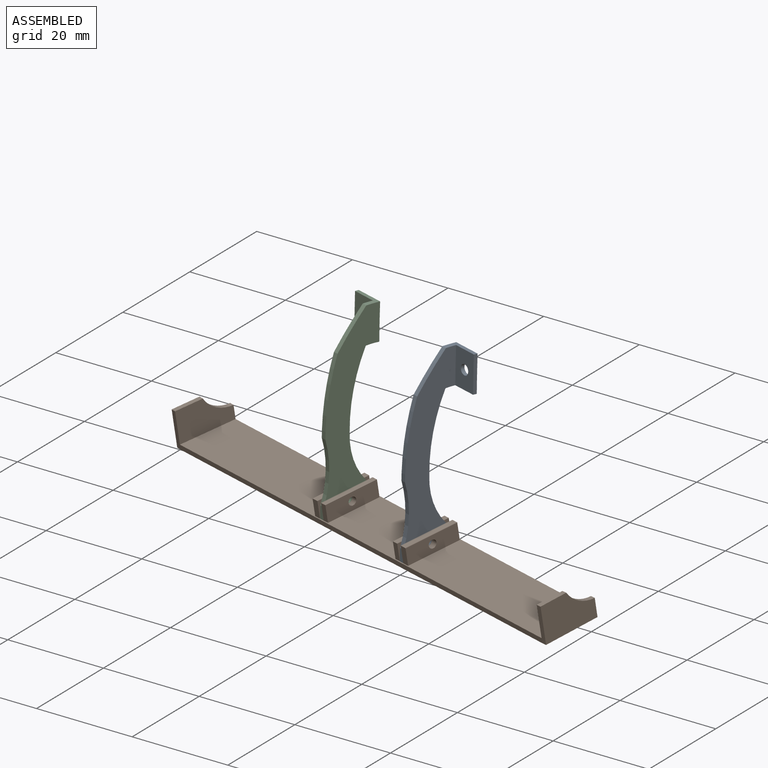
[diagram: assembled view]
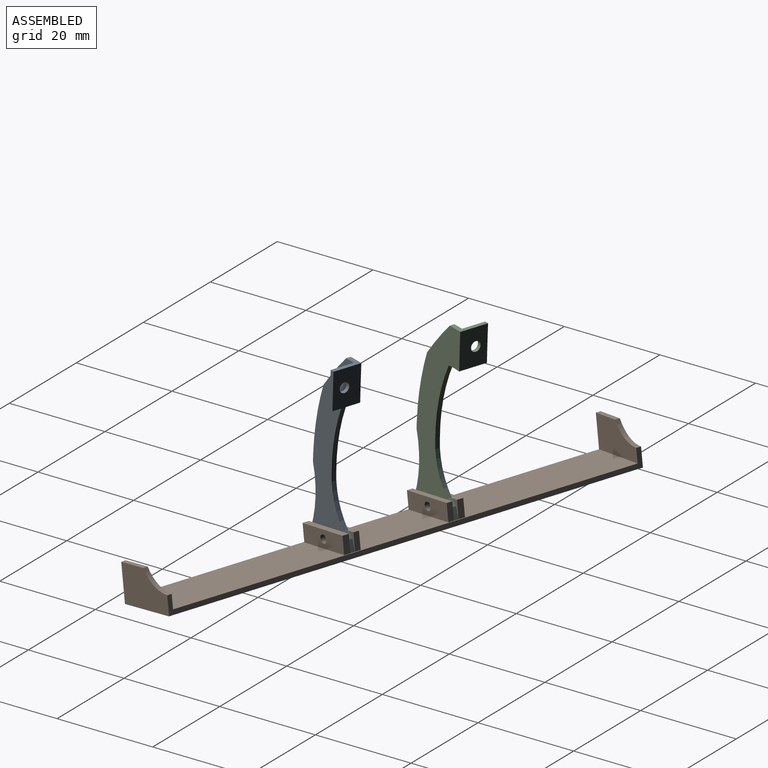
[diagram: assembled view, second angle]
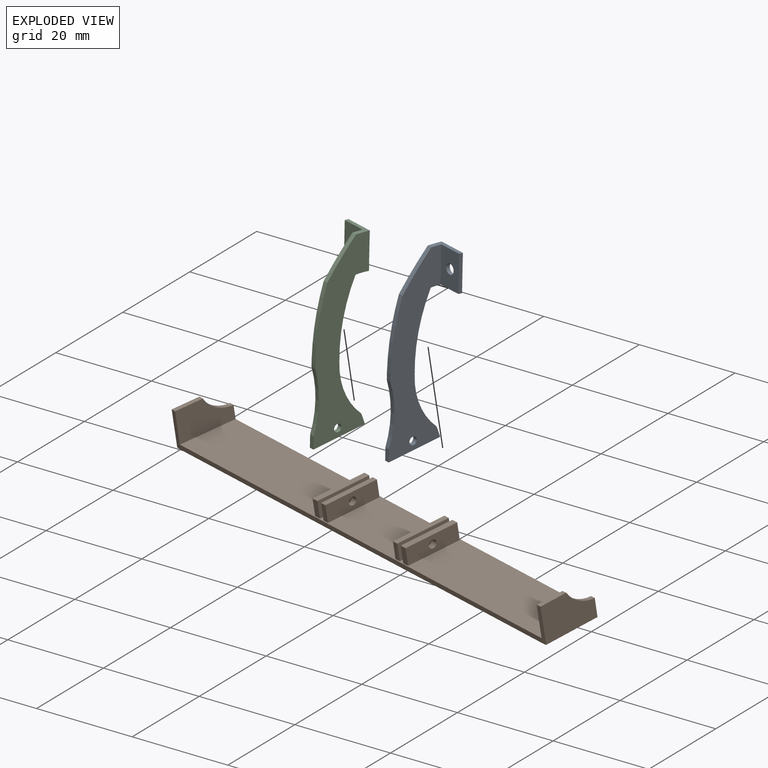
[diagram: exploded view]
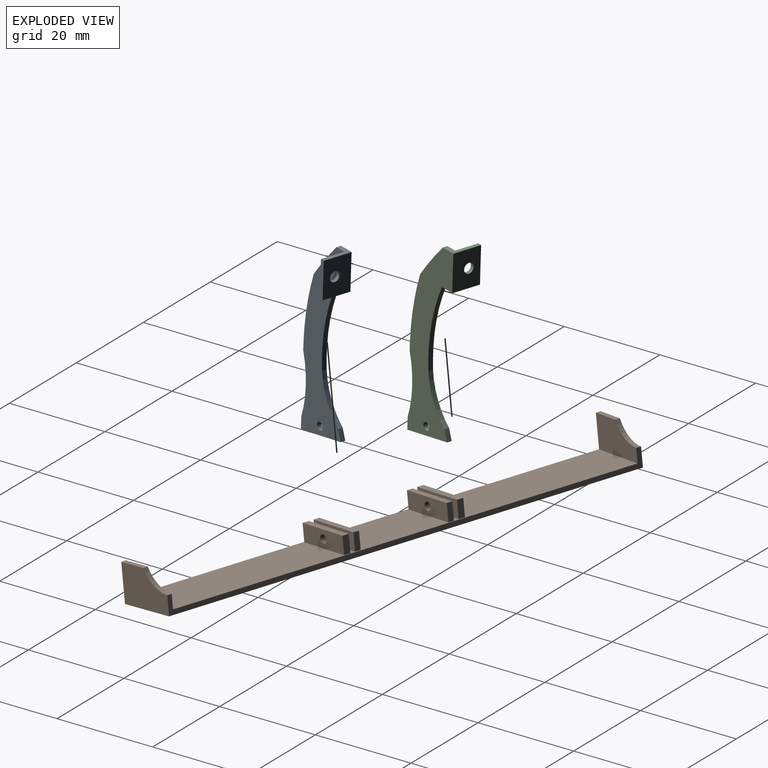
[diagram: exploded view, second angle]
ASSEMBLY  parts=3 mates=2
PART A: 18 faces, bbox 11.3x38.1x6 mm
  f0: cylinder r=20.51mm len=12.61mm, axis (0,0,1), area 12.8mm2, adj f1,f11,f12,f13
  f1: plane 1.46x1mm, normal (-1,0,0), area 1.5mm2, adj f0,f2,f12,f13
  f2: cylinder r=48.91mm len=14.02mm, axis (0,0,1), area 14.3mm2, adj f1,f3,f12,f13
  f3: cylinder r=77.76mm len=7.54mm, axis (0,0,1), area 9.7mm2, adj f2,f4,f12,f13
  f4: cylinder r=55.28mm len=6mm, axis (0,0,1), area 7mm2, adj f3,f5,f12,f13,f14,f15
  f5: cylinder r=314.04mm len=7.54mm, axis (0,0,1), area 41.9mm2, adj f4,f6,f13,f15,f16
  f6: cylinder r=17.9mm len=6mm, axis (0,0,1), area 7mm2, adj f5,f7,f12,f13,f14,f15
  f7: cylinder r=33.93mm len=15.48mm, axis (0,0,1), area 15.9mm2, adj f6,f8,f12,f13
  f8: cylinder r=13.99mm len=10.91mm, axis (0,0,1), area 12.4mm2, adj f7,f9,f12,f13
  f9: cylinder r=66.07mm len=2.14mm, axis (0,0,1), area 2.3mm2, adj f8,f10,f12,f13
  f10: plane 11.09x2.03mm, normal (0.18,0.98,0), area 11.3mm2, adj f9,f11,f12,f13
  f11: plane 2.47x1mm, normal (-1,0,0), area 2.5mm2, adj f0,f10,f12,f13
  f12: plane 38.12x11.09mm, normal (0,0,-1), area 222.3mm2, adj f0,f1,f2,f3,f4,f6,f7,f8
  f13: plane 38.12x11.3mm, normal (0,0,1), area 228.3mm2, adj f0,f1,f2,f3,f4,f5,f6,f7
  f14: plane 7.5x5mm, normal (-1,0,0), area 34.2mm2, adj f4,f6,f12,f15,f16
  f15: plane 7.55x0.81mm, normal (0,0,-1), area 6mm2, adj f4,f5,f6,f14
  f16: cylinder r=1.03mm len=2.07mm, axis (-1,0,0), area 5.1mm2, adj f5,f14
  f17: cylinder r=0.8mm len=1.59mm, axis (0,0,1), area 5mm2, adj f12,f13
PART B: 40 faces, bbox 103.6x11.8x7.6 mm
  f0: plane 101.6x11.73mm, normal (0,0,1), area 1126.5mm2, adj f1,f2,f4,f5,f6,f7,f9,f10
  f1: plane 101.6x1mm, normal (0,-1,0), area 101.6mm2, adj f0,f3,f26,f32
  f2: plane 100.39x1mm, normal (0,1,0), area 100.4mm2, adj f0,f3,f25,f33
  f3: plane 103.6x11.78mm, normal (0,0,-1), area 1207.7mm2, adj f1,f2,f25,f26,f29,f32,f33,f34
  f4: plane 3.5x1.2mm, normal (0,1,0), area 4.2mm2, adj f0,f5,f7,f8
  f5: plane 11.28x3.5mm, normal (-1,0,0), area 37.3mm2, adj f0,f4,f6,f8,f39
  f6: plane 3.5x1.2mm, normal (0,-1,0), area 4.2mm2, adj f0,f5,f7,f8
  f7: plane 11.28x3.5mm, normal (1,0,0), area 37.3mm2, adj f0,f4,f6,f8,f39
  f8: plane 11.28x1.2mm, normal (0,0,1), area 13.6mm2, adj f4,f5,f6,f7
  f9: plane 11.31x3.5mm, normal (1,0,0), area 37.4mm2, adj f0,f10,f12,f13,f38
  f10: plane 3.5x1.35mm, normal (0,1,0), area 4.7mm2, adj f0,f9,f11,f13
  f11: plane 11.31x3.5mm, normal (-1,0,0), area 37.4mm2, adj f0,f10,f12,f13,f38
  f12: plane 3.5x1.35mm, normal (0,-1,0), area 4.7mm2, adj f0,f9,f11,f13
  f13: plane 11.31x1.35mm, normal (0,0,1), area 15.3mm2, adj f9,f10,f11,f12
  f14: plane 11.31x3.5mm, normal (-1,0,0), area 37.4mm2, adj f0,f15,f17,f18,f37
  f15: plane 3.5x1.35mm, normal (0,-1,0), area 4.7mm2, adj f0,f14,f16,f18
  f16: plane 11.31x3.5mm, normal (1,0,0), area 37.4mm2, adj f0,f15,f17,f18,f37
  f17: plane 3.5x1.35mm, normal (0,1,0), area 4.7mm2, adj f0,f14,f16,f18
  f18: plane 11.31x1.35mm, normal (0,0,1), area 15.3mm2, adj f14,f15,f16,f17
  f19: plane 3.5x1.2mm, normal (0,-1,0), area 4.2mm2, adj f0,f20,f22,f23
  f20: plane 11.28x3.5mm, normal (1,0,0), area 37.3mm2, adj f0,f19,f21,f23,f36
  f21: plane 3.5x1.2mm, normal (0,1,0), area 4.2mm2, adj f0,f20,f22,f23
  f22: plane 11.28x3.5mm, normal (-1,0,0), area 37.3mm2, adj f0,f19,f21,f23,f36
  f23: plane 11.28x1.2mm, normal (0,0,1), area 13.6mm2, adj f19,f20,f21,f22
  f24: plane 11.73x6.62mm, normal (1,-0.05,0), area 61.7mm2, adj f0,f25,f26,f27,f28
  f25: plane 3.81x1mm, normal (0.05,1,0), area 3.8mm2, adj f2,f3,f24,f28,f29
  f26: plane 7.62x1mm, normal (-0.05,-1,0), area 7.6mm2, adj f1,f3,f24,f27,f29
  f27: plane 5.91x1.3mm, normal (0,0,1), area 5.9mm2, adj f24,f26,f28,f29
  f28: cylinder r=6.47mm len=5.91mm, axis (1,-0.05,0), area 7.4mm2, adj f24,f25,f27,f29
  f29: plane 11.73x7.62mm, normal (-1,0.05,0), area 73.4mm2, adj f3,f25,f26,f27,f28
  f30: cylinder r=6.9mm len=5.91mm, axis (-1,-0.05,0), area 7.3mm2, adj f31,f33,f34,f35
  f31: plane 5.91x1.3mm, normal (0,0,1), area 5.9mm2, adj f30,f32,f34,f35
  f32: plane 7.62x1mm, normal (0.05,-1,0), area 7.6mm2, adj f1,f3,f31,f34,f35
  f33: plane 3.81x1mm, normal (-0.05,1,0), area 3.8mm2, adj f2,f3,f30,f34,f35
  f34: plane 11.73x7.62mm, normal (1,0.05,0), area 73.8mm2, adj f3,f30,f31,f32,f33
  f35: plane 11.73x6.62mm, normal (-1,-0.05,0), area 62mm2, adj f0,f30,f31,f32,f33
  f36: cylinder r=0.84mm len=1.68mm, axis (1,0,0), area 6.3mm2, adj f20,f22
  f37: cylinder r=0.84mm len=1.68mm, axis (1,0,0), area 7.1mm2, adj f14,f16
  f38: cylinder r=0.84mm len=1.68mm, axis (1,0,0), area 7.1mm2, adj f9,f11
  f39: cylinder r=0.84mm len=1.68mm, axis (1,0,0), area 6.3mm2, adj f5,f7
PART C: 18 faces, bbox 11.3x38.1x6 mm
  f0: cylinder r=20.51mm len=12.61mm, axis (0,0,-1), area 12.8mm2, adj f1,f11,f12,f13
  f1: plane 1.46x1mm, normal (-1,0,0), area 1.5mm2, adj f0,f2,f12,f13
  f2: cylinder r=48.91mm len=14.02mm, axis (0,0,-1), area 14.3mm2, adj f1,f3,f12,f13
  f3: cylinder r=77.76mm len=7.54mm, axis (0,0,-1), area 9.7mm2, adj f2,f4,f12,f13
  f4: cylinder r=55.28mm len=6mm, axis (0,0,-1), area 7mm2, adj f3,f5,f12,f13,f14,f15
  f5: cylinder r=314.04mm len=7.54mm, axis (0,0,-1), area 41.9mm2, adj f4,f6,f13,f15,f16
  f6: cylinder r=17.9mm len=6mm, axis (0,0,-1), area 7mm2, adj f5,f7,f12,f13,f14,f15
  f7: cylinder r=33.93mm len=15.48mm, axis (0,0,-1), area 15.9mm2, adj f6,f8,f12,f13
  f8: cylinder r=13.99mm len=10.91mm, axis (0,0,-1), area 12.4mm2, adj f7,f9,f12,f13
  f9: cylinder r=66.07mm len=2.14mm, axis (0,0,-1), area 2.3mm2, adj f8,f10,f12,f13
  f10: plane 11.09x2.03mm, normal (0.18,0.98,0), area 11.3mm2, adj f9,f11,f12,f13
  f11: plane 2.47x1mm, normal (-1,0,0), area 2.5mm2, adj f0,f10,f12,f13
  f12: plane 38.12x11.09mm, normal (0,0,1), area 222.3mm2, adj f0,f1,f2,f3,f4,f6,f7,f8
  f13: plane 38.12x11.3mm, normal (0,0,-1), area 228.3mm2, adj f0,f1,f2,f3,f4,f5,f6,f7
  f14: plane 7.5x5mm, normal (-1,0,0), area 34.2mm2, adj f4,f6,f12,f15,f16
  f15: plane 7.55x0.81mm, normal (0,0,1), area 6mm2, adj f4,f5,f6,f14
  f16: cylinder r=1.03mm len=2.07mm, axis (-1,0,0), area 5.1mm2, adj f5,f14
  f17: cylinder r=0.8mm len=1.59mm, axis (0,0,1), area 5mm2, adj f12,f13
PLACE A rot(axis=(-0.7,-0.5,0.51),111.8deg) t=(0.91,19.84,31.28)mm
PLACE B rot(axis=(0.44,-0.1,-0.89),19.4deg) t=(-9.3,21.75,-7.92)mm
PLACE C rot(axis=(-0.7,-0.5,0.51),111.8deg) t=(-19.48,26.25,31.08)mm
MATE fastened B.f0 <-> A.f10  axis (-0.05,-0.14,0.99) through (3.53,23.63,-5.94)mm
MATE fastened B.f0 <-> C.f10  axis (-0.05,-0.14,0.99) through (-17.82,30.34,-6.16)mm
